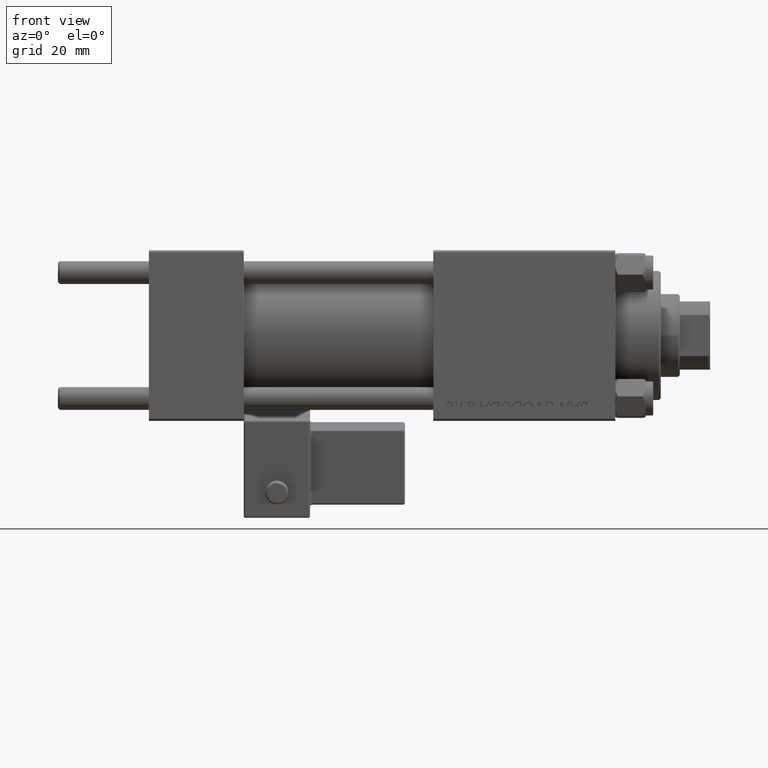
[diagram: clean part render]
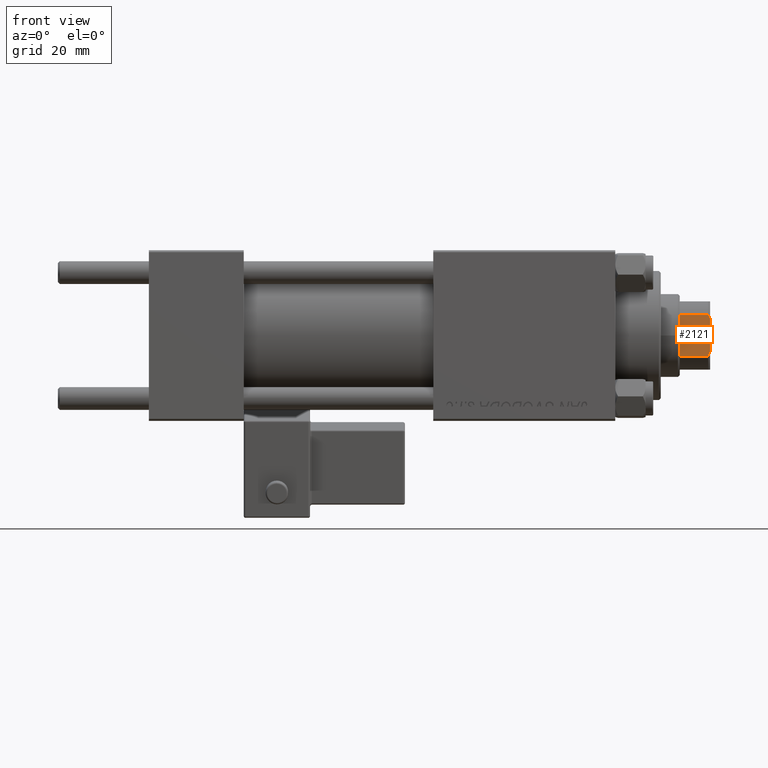
[diagram: same view with one face highlighted and labeled with its STEP entity id]
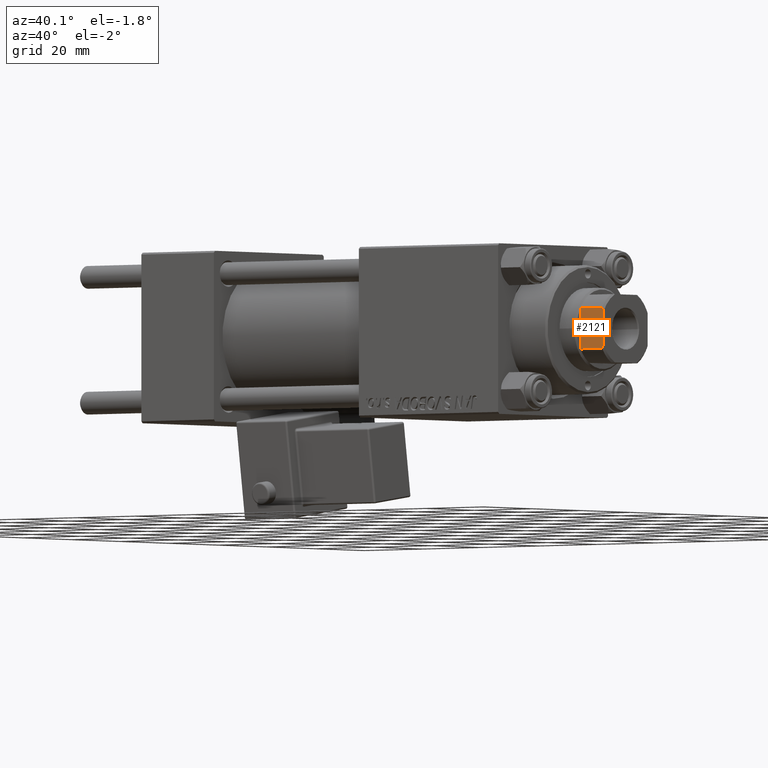
[diagram: same view with one face highlighted and labeled with its STEP entity id]
A machine part, front view. The second image highlights one B-rep face of the part: STEP entity #2121.
A second angle (auxiliary view) of the same face is appended — the face is thin or edge-on in the first view.
In plain terms, the highlighted planar face has unit normal (0, 1, 0).
Its self-contained STEP definition (entity closure, byte-faithful):
#590 = EDGE_CURVE ( 'NONE', #37779, #20928, #37974, .T. ) ;
#847 = EDGE_CURVE ( 'NONE', #20928, #39867, #16257, .T. ) ;
#1159 = B_SPLINE_CURVE_WITH_KNOTS ( 'NONE', 3,
 ( #42296, #21943, #26686, #34632 ),
 .UNSPECIFIED., .F., .F.,
 ( 4, 4 ),
 ( 0.000000000000000000, 0.001162453897363195177 ),
 .UNSPECIFIED. ) ;
#2121 = ADVANCED_FACE ( 'NONE', ( #41046 ), #8026, .F. ) ;
#5101 = DIRECTION ( 'NONE',  ( 1.927470528863119049E-16, -1.000000000000000000, 0.000000000000000000 ) ) ;
#7720 = EDGE_CURVE ( 'NONE', #39867, #51497, #45015, .T. ) ;
#8026 = PLANE ( 'NONE',  #39654 ) ;
#8155 = ORIENTED_EDGE ( 'NONE', *, *, #20361, .F. ) ;
#8808 = DIRECTION ( 'NONE',  ( -1.000000000000000000, -1.927470528863119049E-16, 0.000000000000000000 ) ) ;
#9976 = ORIENTED_EDGE ( 'NONE', *, *, #590, .T. ) ;
#11512 = CARTESIAN_POINT ( 'NONE',  ( 8.999999999999998224, -4.358898943540672200, 123.0000000000000000 ) ) ;
#11969 = EDGE_LOOP ( 'NONE', ( #24311, #46019, #8155, #46804, #22948, #9976 ) ) ;
#12828 = DIRECTION ( 'NONE',  ( -0.000000000000000000, -0.000000000000000000, 1.000000000000000000 ) ) ;
#13670 = DIRECTION ( 'NONE',  ( -1.927470528863119049E-16, 1.000000000000000000, -0.000000000000000000 ) ) ;
#15794 = LINE ( 'NONE', #31901, #40880 ) ;
#16257 = LINE ( 'NONE', #41347, #31152 ) ;
#16628 = EDGE_CURVE ( 'NONE', #37779, #35558, #19153, .T. ) ;
#16639 = CARTESIAN_POINT ( 'NONE',  ( 8.999999999999998224, 4.714305797500204065, 122.8450817439748306 ) ) ;
#17250 = CARTESIAN_POINT ( 'NONE',  ( 8.999999999999996447, 8.999999999999998224, 123.0000000000000000 ) ) ;
#19153 = LINE ( 'NONE', #35279, #39158 ) ;
#20361 = EDGE_CURVE ( 'NONE', #36055, #51497, #15794, .T. ) ;
#20601 = CARTESIAN_POINT ( 'NONE',  ( 8.999999999999996447, 5.408326913195991459, 122.4999999999999716 ) ) ;
#20928 = VERTEX_POINT ( 'NONE', #39347 ) ;
#21943 = CARTESIAN_POINT ( 'NONE',  ( 9.000000000000000000, -4.714305797500252027, 122.8450817439748448 ) ) ;
#22948 = ORIENTED_EDGE ( 'NONE', *, *, #16628, .F. ) ;
#23771 = VECTOR ( 'NONE', #13670, 1000.000000000000000 ) ;
#24311 = ORIENTED_EDGE ( 'NONE', *, *, #847, .T. ) ;
#26686 = CARTESIAN_POINT ( 'NONE',  ( 9.000000000000000000, -5.063687070142444568, 122.6775166608139216 ) ) ;
#29945 = CARTESIAN_POINT ( 'NONE',  ( 8.999999999999996447, -5.408326913195990571, 115.0000000000000284 ) ) ;
#31152 = VECTOR ( 'NONE', #12828, 1000.000000000000000 ) ;
#31901 = CARTESIAN_POINT ( 'NONE',  ( 8.999999999999996447, 8.999999999999998224, 123.0000000000000000 ) ) ;
#32753 = CARTESIAN_POINT ( 'NONE',  ( 8.999999999999998224, 4.358898943540600257, 123.0000000000000000 ) ) ;
#34632 = CARTESIAN_POINT ( 'NONE',  ( 8.999999999999996447, -5.408326913195990571, 122.5000000000000000 ) ) ;
#35279 = CARTESIAN_POINT ( 'NONE',  ( 8.999999999999996447, -5.408326913195990571, -0.001000000000001000089 ) ) ;
#35475 = CARTESIAN_POINT ( 'NONE',  ( 8.999999999999996447, -5.408326913195990571, 122.5000000000000000 ) ) ;
#35558 = VERTEX_POINT ( 'NONE', #35475 ) ;
#36055 = VERTEX_POINT ( 'NONE', #11512 ) ;
#37779 = VERTEX_POINT ( 'NONE', #29945 ) ;
#37974 = LINE ( 'NONE', #50673, #23771 ) ;
#38165 = EDGE_CURVE ( 'NONE', #36055, #35558, #1159, .T. ) ;
#39158 = VECTOR ( 'NONE', #51420, 1000.000000000000000 ) ;
#39347 = CARTESIAN_POINT ( 'NONE',  ( 8.999999999999996447, 5.408326913195991459, 115.0000000000000284 ) ) ;
#39654 = AXIS2_PLACEMENT_3D ( 'NONE', #17250, #8808, #5101 ) ;
#39867 = VERTEX_POINT ( 'NONE', #48281 ) ;
#40880 = VECTOR ( 'NONE', #48047, 1000.000000000000000 ) ;
#41046 = FACE_OUTER_BOUND ( 'NONE', #11969, .T. ) ;
#41347 = CARTESIAN_POINT ( 'NONE',  ( 8.999999999999996447, 5.408326913195991459, -0.001000000000001000089 ) ) ;
#42296 = CARTESIAN_POINT ( 'NONE',  ( 8.999999999999998224, -4.358898943540672200, 123.0000000000000000 ) ) ;
#45015 = B_SPLINE_CURVE_WITH_KNOTS ( 'NONE', 3,
 ( #20601, #49688, #16639, #32753 ),
 .UNSPECIFIED., .F., .F.,
 ( 4, 4 ),
 ( 0.000000000000000000, 0.001162453897363273890 ),
 .UNSPECIFIED. ) ;
#45929 = CARTESIAN_POINT ( 'NONE',  ( 8.999999999999998224, 4.358898943540600257, 123.0000000000000000 ) ) ;
#46019 = ORIENTED_EDGE ( 'NONE', *, *, #7720, .T. ) ;
#46804 = ORIENTED_EDGE ( 'NONE', *, *, #38165, .T. ) ;
#48047 = DIRECTION ( 'NONE',  ( -1.927470528863119049E-16, 1.000000000000000000, -0.000000000000000000 ) ) ;
#48281 = CARTESIAN_POINT ( 'NONE',  ( 8.999999999999996447, 5.408326913195991459, 122.4999999999999716 ) ) ;
#49688 = CARTESIAN_POINT ( 'NONE',  ( 8.999999999999996447, 5.063687070142427693, 122.6775166608138932 ) ) ;
#50673 = CARTESIAN_POINT ( 'NONE',  ( 8.999999999999996447, 8.999999999999998224, 115.0000000000000000 ) ) ;
#51420 = DIRECTION ( 'NONE',  ( -0.000000000000000000, -0.000000000000000000, 1.000000000000000000 ) ) ;
#51497 = VERTEX_POINT ( 'NONE', #45929 ) ;